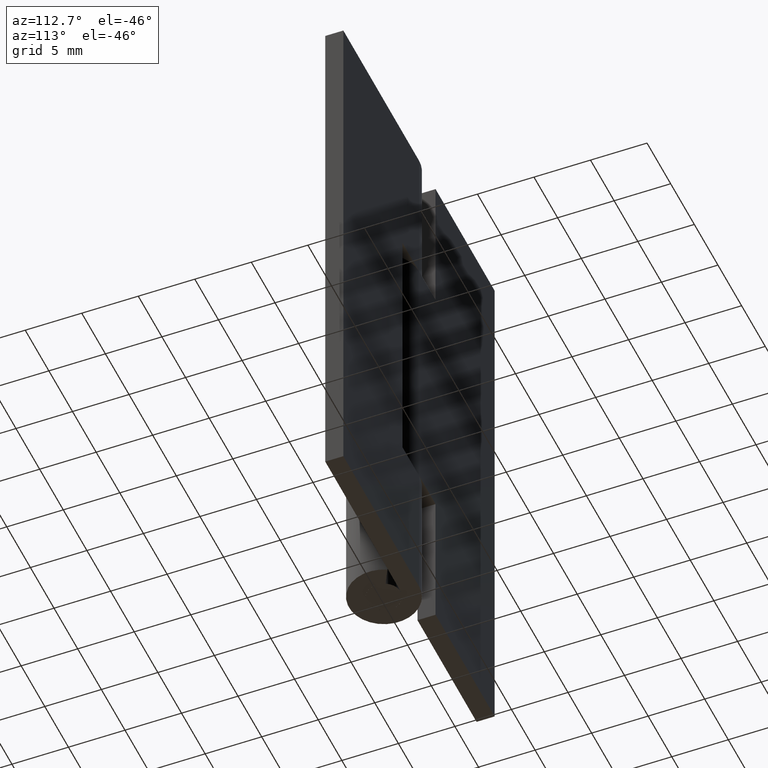
[diagram: clean part render]
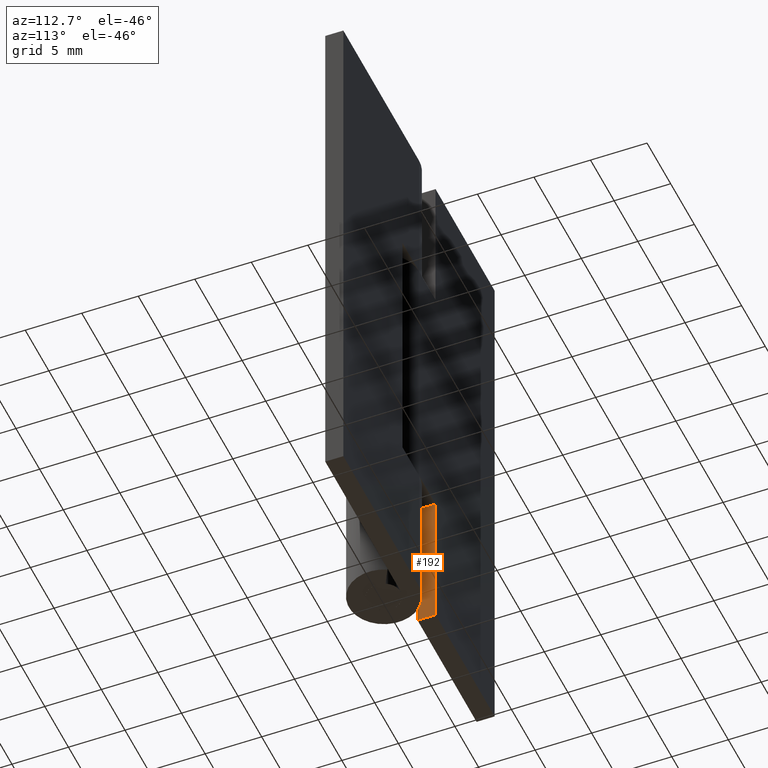
[diagram: same view with one face highlighted and labeled with its STEP entity id]
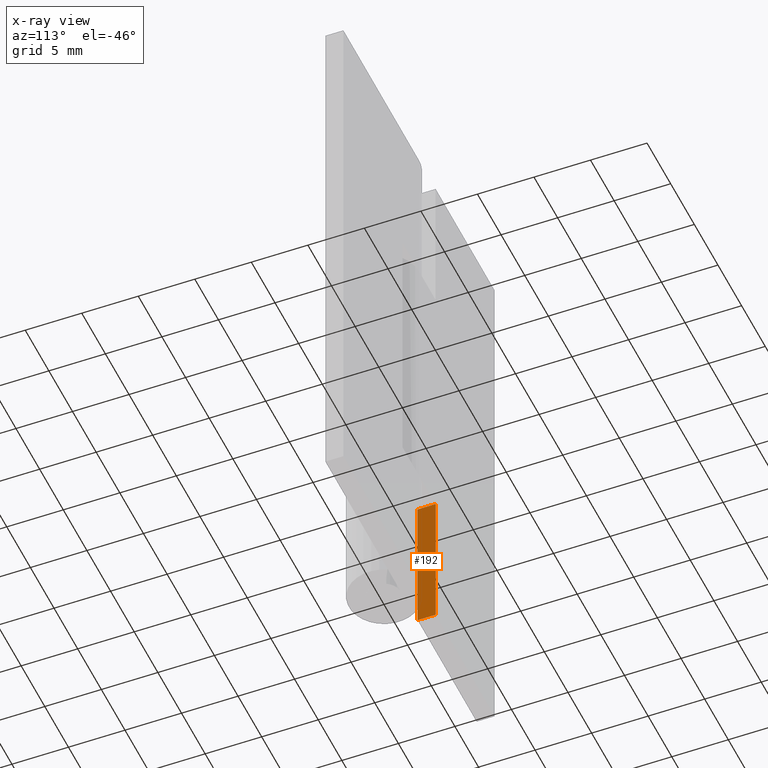
[diagram: x-ray of the same camera — body ghosted, the highlighted face saturated]
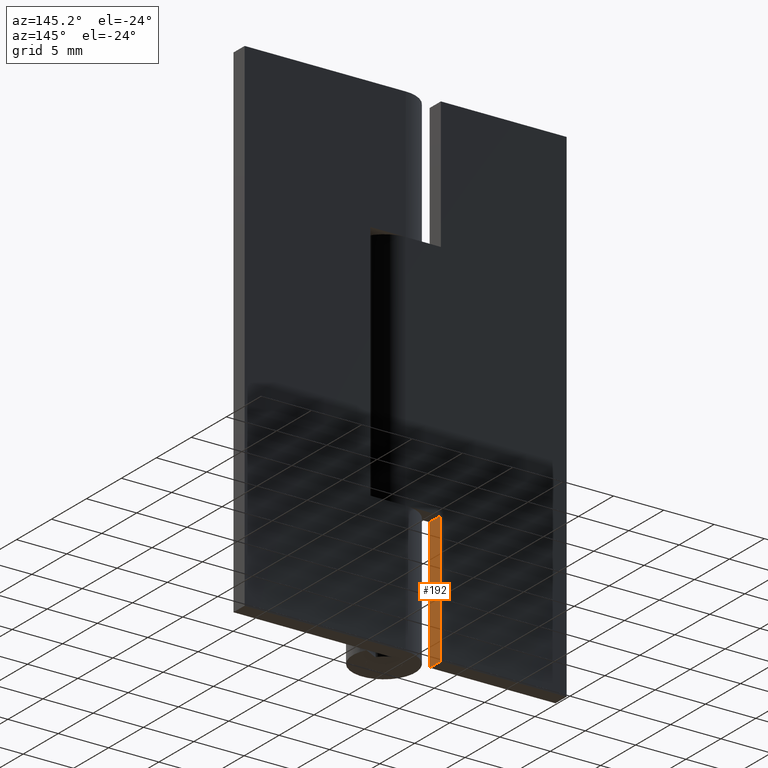
[diagram: same view with one face highlighted and labeled with its STEP entity id]
A machine part, auxiliary view. The second image highlights one B-rep face of the part: STEP entity #192.
The next image is the same camera in x-ray: the body ghosted, the highlighted face saturated — about 0% of this face is hidden behind the body in this view.
A second angle (auxiliary view) of the same face is appended — the face is thin or edge-on in the first view.
In plain terms, the highlighted face is a freeform B-spline surface patch.
Its self-contained STEP definition (entity closure, byte-faithful):
#157=CARTESIAN_POINT('',(-3.500000000000100,1.420080103001048,-0.649349974803477));
#158=CARTESIAN_POINT('',(-3.500000000000100,1.420080103001048,13.649350323490649));
#159=CARTESIAN_POINT('',(-3.500000000000100,3.179917939914240,-0.649349974803477));
#160=CARTESIAN_POINT('',(-3.500000000000100,3.179917939914240,13.649350323490649));
#161=B_SPLINE_SURFACE_WITH_KNOTS('',1,1,((#157,#159),(#158,#160)),.UNSPECIFIED.,.F.,.F.,.U.,(2,2),(2,2),(0.0,14.298700298294129),(0.041708334948495,0.958291687403247),.UNSPECIFIED.);
#162=CARTESIAN_POINT('',(-3.500000000000100,1.499999999999946,13.0));
#163=VERTEX_POINT('',#162);
#164=CARTESIAN_POINT('',(-3.500000000000100,1.500000000000000,0.0));
#165=VERTEX_POINT('',#164);
#166=CARTESIAN_POINT('',(-3.500000000000100,1.499999999999946,13.0));
#167=CARTESIAN_POINT('',(-3.500000000000100,1.500000000000000,0.0));
#168=QUASI_UNIFORM_CURVE('',1,(#166,#167),.UNSPECIFIED.,.F.,.U.);
#169=EDGE_CURVE('',#163,#165,#168,.T.);
#170=ORIENTED_EDGE('',*,*,#169,.T.);
#171=CARTESIAN_POINT('',(-3.500000000000100,3.099998000000050,0.0));
#172=VERTEX_POINT('',#171);
#173=CARTESIAN_POINT('',(-3.500000000000100,1.500000000000000,0.0));
#174=CARTESIAN_POINT('',(-3.500000000000100,3.099998000000050,0.0));
#175=QUASI_UNIFORM_CURVE('',1,(#173,#174),.UNSPECIFIED.,.F.,.U.);
#176=EDGE_CURVE('',#165,#172,#175,.T.);
#177=ORIENTED_EDGE('',*,*,#176,.T.);
#178=CARTESIAN_POINT('',(-3.500000000000100,3.099998000000050,13.0));
#179=VERTEX_POINT('',#178);
#180=CARTESIAN_POINT('',(-3.500000000000100,3.099998000000050,0.0));
#181=CARTESIAN_POINT('',(-3.500000000000100,3.099998000000050,13.0));
#182=QUASI_UNIFORM_CURVE('',1,(#180,#181),.UNSPECIFIED.,.F.,.U.);
#183=EDGE_CURVE('',#172,#179,#182,.T.);
#184=ORIENTED_EDGE('',*,*,#183,.T.);
#185=CARTESIAN_POINT('',(-3.500000000000100,1.499999999999946,13.0));
#186=CARTESIAN_POINT('',(-3.500000000000100,3.099998000000050,13.0));
#187=QUASI_UNIFORM_CURVE('',1,(#185,#186),.UNSPECIFIED.,.F.,.U.);
#188=EDGE_CURVE('',#163,#179,#187,.T.);
#189=ORIENTED_EDGE('',*,*,#188,.F.);
#190=EDGE_LOOP('',(#170,#177,#184,#189));
#191=FACE_OUTER_BOUND('',#190,.T.);
#192=ADVANCED_FACE('',(#191),#161,.F.);